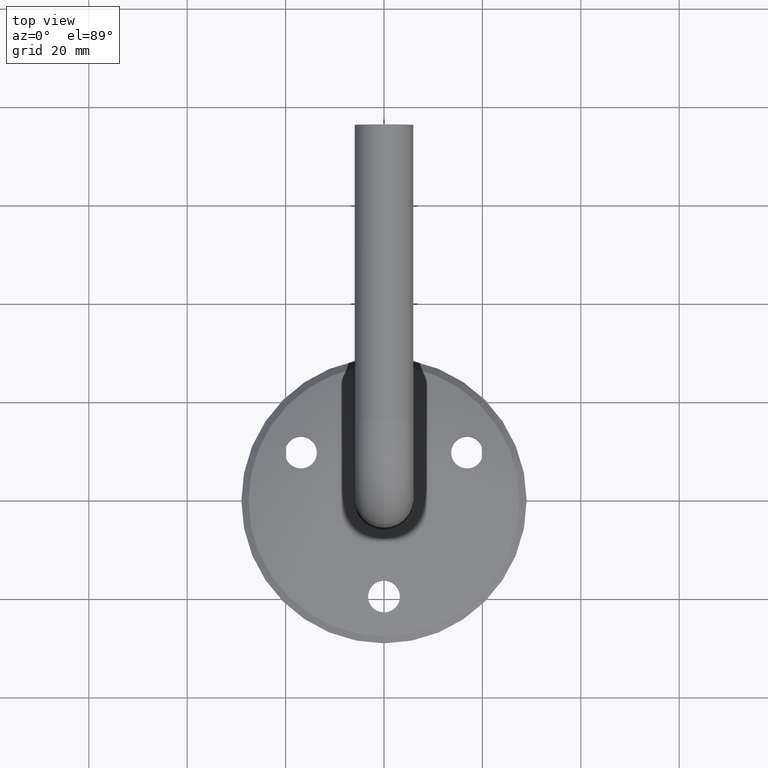
[diagram: clean part render]
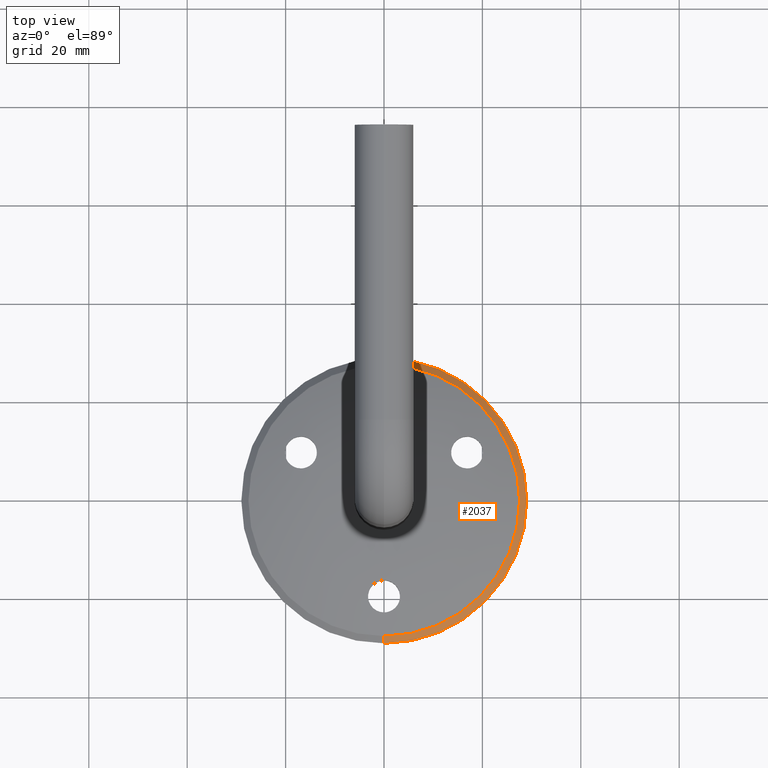
[diagram: same view with one face highlighted and labeled with its STEP entity id]
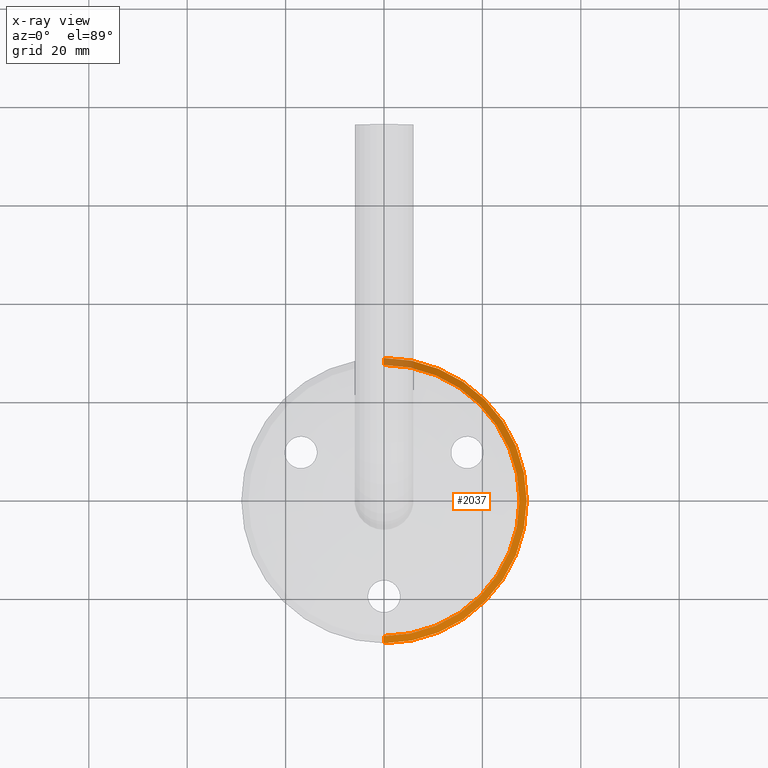
[diagram: x-ray of the same camera — body ghosted, the highlighted face saturated]
A machine part, top view. The second image highlights one B-rep face of the part: STEP entity #2037.
The next image is the same camera in x-ray: the body ghosted, the highlighted face saturated — about 7% of this face is hidden behind the body in this view.
In plain terms, the highlighted conical surface has half-angle 47.229 deg.
Its self-contained STEP definition (entity closure, byte-faithful):
#197 = CARTESIAN_POINT ( 'NONE',  ( 3.551475717527324030E-15, 3.039262542945622592, 29.00000000000000000 ) ) ;
#550 = CARTESIAN_POINT ( 'NONE',  ( 0.000000000000000000, 3.039262542945622592, -29.00000000000000000 ) ) ;
#898 = CARTESIAN_POINT ( 'NONE',  ( 3.373901931650957986E-15, 4.380627137030746354, 27.54999999999999716 ) ) ;
#1022 = FACE_OUTER_BOUND ( 'NONE', #9370, .T. ) ;
#1357 = EDGE_CURVE ( 'NONE', #4050, #9222, #1911, .T. ) ;
#1606 = LINE ( 'NONE', #13697, #4235 ) ;
#1911 = CIRCLE ( 'NONE', #2829, 29.00000000000000000 ) ;
#2037 = ADVANCED_FACE ( 'NONE', ( #1022 ), #6765, .T. ) ;
#2082 = CARTESIAN_POINT ( 'NONE',  ( 0.000000000000000000, 3.039262542945622592, 0.000000000000000000 ) ) ;
#2342 = AXIS2_PLACEMENT_3D ( 'NONE', #2082, #5456, #9902 ) ;
#2764 = CARTESIAN_POINT ( 'NONE',  ( 0.000000000000000000, 3.039262542945622592, 0.000000000000000000 ) ) ;
#2829 = AXIS2_PLACEMENT_3D ( 'NONE', #2764, #6011, #13801 ) ;
#3056 = ORIENTED_EDGE ( 'NONE', *, *, #10242, .T. ) ;
#3074 = LINE ( 'NONE', #197, #12936 ) ;
#4025 = CARTESIAN_POINT ( 'NONE',  ( 0.000000000000000000, 4.380627137030746354, -27.54999999999999716 ) ) ;
#4050 = VERTEX_POINT ( 'NONE', #550 ) ;
#4235 = VECTOR ( 'NONE', #6053, 1000.000000000000000 ) ;
#4352 = CARTESIAN_POINT ( 'NONE',  ( 0.000000000000000000, 4.380627137030746354, 0.000000000000000000 ) ) ;
#4730 = AXIS2_PLACEMENT_3D ( 'NONE', #4352, #5645, #13377 ) ;
#5456 = DIRECTION ( 'NONE',  ( -0.000000000000000000, -1.000000000000000000, -0.000000000000000000 ) ) ;
#5645 = DIRECTION ( 'NONE',  ( -0.000000000000000000, -1.000000000000000000, -0.000000000000000000 ) ) ;
#6011 = DIRECTION ( 'NONE',  ( -0.000000000000000000, -1.000000000000000000, -0.000000000000000000 ) ) ;
#6053 = DIRECTION ( 'NONE',  ( 0.000000000000000000, -0.6790732448019135559, -0.7340705199054109453 ) ) ;
#6513 = EDGE_CURVE ( 'NONE', #13115, #9222, #3074, .T. ) ;
#6765 = CONICAL_SURFACE ( 'NONE', #2342, 29.00000000000000000, 0.8242969185307716939 ) ;
#7743 = VERTEX_POINT ( 'NONE', #4025 ) ;
#9180 = CARTESIAN_POINT ( 'NONE',  ( 3.551475717527324030E-15, 3.039262542945622592, 29.00000000000000000 ) ) ;
#9222 = VERTEX_POINT ( 'NONE', #9180 ) ;
#9370 = EDGE_LOOP ( 'NONE', ( #3056, #14060, #12064, #13548 ) ) ;
#9902 = DIRECTION ( 'NONE',  ( 0.000000000000000000, 0.000000000000000000, -1.000000000000000000 ) ) ;
#10089 = EDGE_CURVE ( 'NONE', #7743, #4050, #1606, .T. ) ;
#10242 = EDGE_CURVE ( 'NONE', #7743, #13115, #10462, .T. ) ;
#10462 = CIRCLE ( 'NONE', #4730, 27.54999999999999716 ) ;
#11311 = DIRECTION ( 'NONE',  ( 8.989771125505949188E-17, -0.6790732448019135559, 0.7340705199054109453 ) ) ;
#12064 = ORIENTED_EDGE ( 'NONE', *, *, #1357, .F. ) ;
#12936 = VECTOR ( 'NONE', #11311, 1000.000000000000000 ) ;
#13115 = VERTEX_POINT ( 'NONE', #898 ) ;
#13377 = DIRECTION ( 'NONE',  ( 0.000000000000000000, 0.000000000000000000, -1.000000000000000000 ) ) ;
#13548 = ORIENTED_EDGE ( 'NONE', *, *, #10089, .F. ) ;
#13697 = CARTESIAN_POINT ( 'NONE',  ( 0.000000000000000000, 3.039262542945622592, -29.00000000000000000 ) ) ;
#13801 = DIRECTION ( 'NONE',  ( 0.000000000000000000, 0.000000000000000000, -1.000000000000000000 ) ) ;
#14060 = ORIENTED_EDGE ( 'NONE', *, *, #6513, .T. ) ;